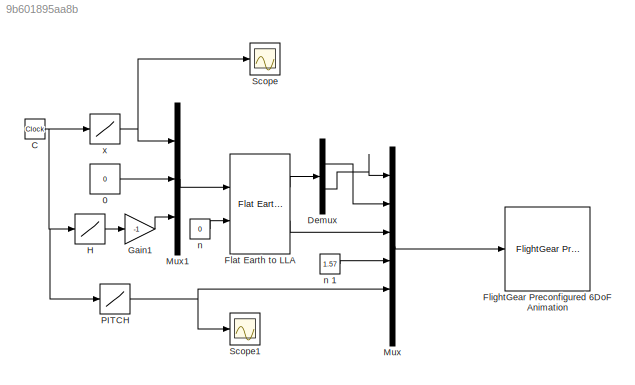
MODEL slx_9b601895aa8b
KIND model
CONFIG AbsTol = auto
CONFIG FixedStep = auto
CONFIG MaxStep = auto
CONFIG MinStep = auto
CONFIG RelTol = 1e-3
CONFIG SampleTimeConstraint = Unconstrained
CONFIG Solver = ode45
CONFIG SolverMode = Auto
CONFIG SolverName = ode45
CONFIG StartTime = 0.0
CONFIG StopTime = 10.0
BLOCK [Constant] 0 
  Value = 0
BLOCK [Clock] C
BLOCK [Demux] Demux
  DisplayOption = bar
  Outputs = 2
  Ports = [1, 2]
BLOCK [Reference] Flat Earth to LLA  REF=aerolibtransform2/Flat Earth to LLA
  F = 1/298.257223563
  LL0 = [ 34.9240 -117.8912]
  Ports = [2, 2]
  R = 6378137
  SourceBlock = aerolibtransform2/Flat Earth to LLA
  SourceType = Flat Earth to LLA
  psi = 0
  ptype = Earth (WGS84)
  units = Metric (MKS)
BLOCK [Reference] FlightGear Preconfigured 6DoF Animation  REF=aerolibfltsims/FlightGear
Preconfigured
6DoF Animation
  AttributesFormatString = Version Selected: %<xFlightGearVersion>
  DestinationIpAddress = 127.0.0.1
  DestinationPort = 5502
  Ports = [1]
  SampleTime = 1/400
  SourceBlock = aerolibfltsims/FlightGear\nPreconfigured\n6DoF Animation
  SourceType = FlightGearQuick6DoFAnimation
  xFlightGearVersion = v3.0
BLOCK [Gain] Gain1
  Gain = -1
  OutDataTypeStr = Inherit: Inherit via internal rule
  ParamDataTypeStr = Inherit: Inherit via internal rule
  SaturateOnIntegerOverflow = off
BLOCK [Lookup] H
  InputValues = TIME
  LookUpMeth = Interpolation-Use End Values
  Table = HEIGHT
BLOCK [Mux] Mux
  DisplayOption = bar
  Inputs = 6
  Ports = [6, 1]
BLOCK [Mux] Mux1
  DisplayOption = bar
  Inputs = 3
  Ports = [3, 1]
BLOCK [Lookup] PITCH
  InputValues = TIME
  LookUpMeth = Interpolation-Use End Values
  Table = PITCH
BLOCK [Scope] Scope
  Floating = off
  NumInputPorts = 1
  Ports = [1]
  YMax = 25000
  YMin = 0
BLOCK [Scope] Scope1
  Floating = off
  NumInputPorts = 1
  Ports = [1]
  SaveName = ScopeData1
  YMax = 0.16
  YMin = -3.46945e-18
BLOCK [Constant] n 
  Value = 0
BLOCK [Constant] n 1
  Value = 1.57
BLOCK [Lookup] x
  InputValues = TIME
  LookUpMeth = Interpolation-Use End Values
  Table = X
LINE 0 :1 -> Mux1:2
NET C:1 -> H:1, PITCH:1, x:1
LINE Demux:1 -> Mux:2
LINE Demux:2 -> Mux:1
LINE Flat Earth to LLA:1 -> Demux:1
LINE Flat Earth to LLA:2 -> Mux:3
LINE Gain1:1 -> Mux1:3
LINE H:1 -> Gain1:1
LINE Mux1:1 -> Flat Earth to LLA:1
LINE Mux:1 -> FlightGear Preconfigured 6DoF Animation:1
NET PITCH:1 -> Mux:5, Scope1:1
LINE n 1:1 -> Mux:4
LINE n :1 -> Flat Earth to LLA:2
NET x:1 -> Mux1:1, Scope:1
note: NET lines group one-source signal fan-out (src -> all destinations, sorted); 1:1 wires keep LINE
